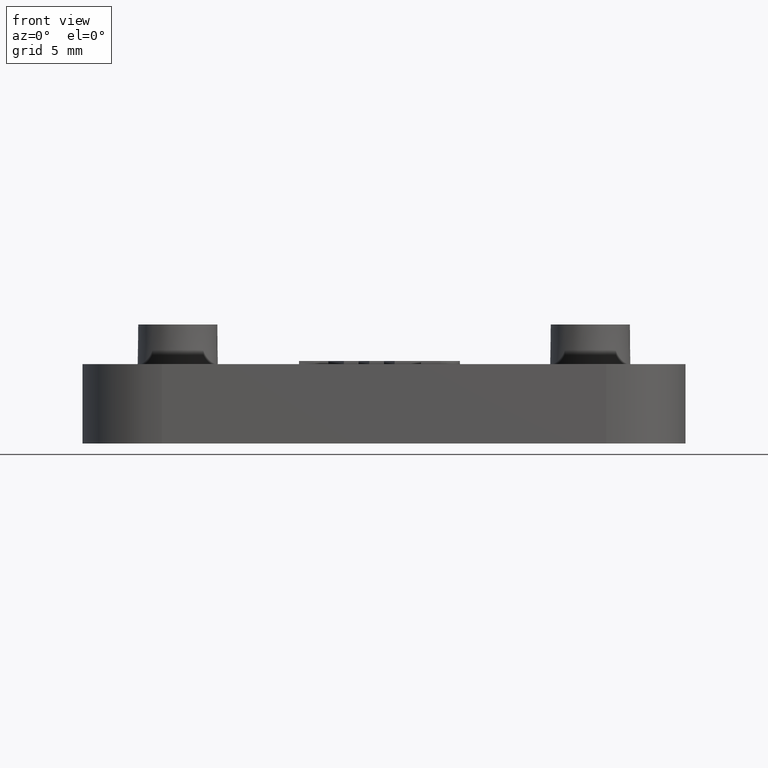
[diagram: clean part render]
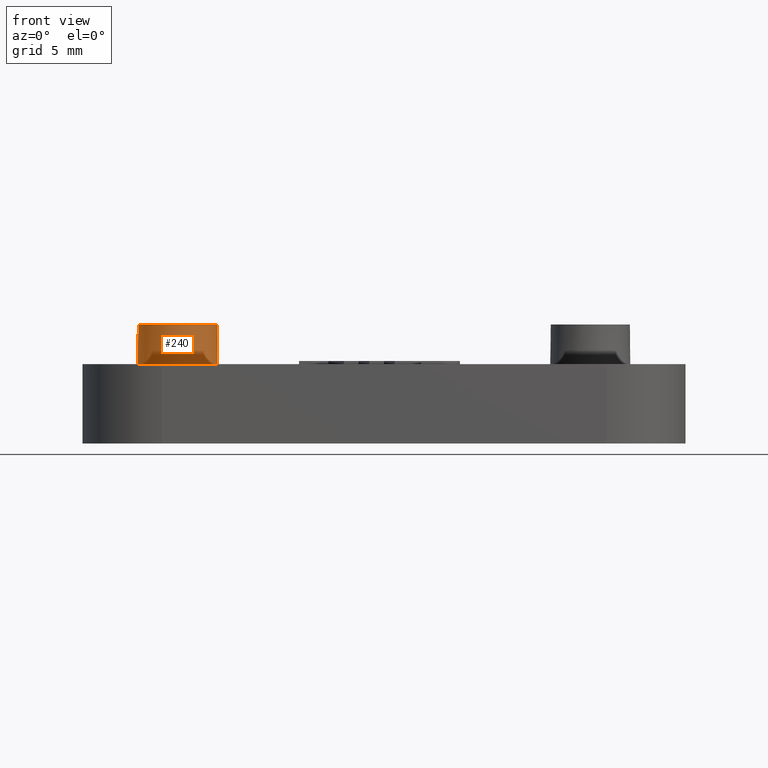
[diagram: same view with one face highlighted and labeled with its STEP entity id]
A machine part, front view. The second image highlights one B-rep face of the part: STEP entity #240.
In plain terms, the highlighted conical surface has half-angle 1 deg.
Its self-contained STEP definition (entity closure, byte-faithful):
#240 = ADVANCED_FACE( '', ( #639, #640 ), #641, .T. );
#639 = FACE_OUTER_BOUND( '', #1127, .T. );
#640 = FACE_BOUND( '', #1128, .T. );
#641 = CONICAL_SURFACE( '', #1129, 2.50000000000000, 0.0174532925199433 );
#1127 = EDGE_LOOP( '', ( #2502 ) );
#1128 = EDGE_LOOP( '', ( #2503 ) );
#1129 = AXIS2_PLACEMENT_3D( '', #2504, #2505, #2506 );
#2502 = ORIENTED_EDGE( '', *, *, #3111, .F. );
#2503 = ORIENTED_EDGE( '', *, *, #3578, .T. );
#2504 = CARTESIAN_POINT( '', ( -13.0000000000000, 0.000165124598850283, 7.49999999999999 ) );
#2505 = DIRECTION( '', ( 0.000000000000000, -6.12303176911189E-017, -1.00000000000000 ) );
#2506 = DIRECTION( '', ( 0.000000000000000, 1.00000000000000, -6.12303176911189E-017 ) );
#3111 = EDGE_CURVE( '', #3698, #3698, #3699, .T. );
#3578 = EDGE_CURVE( '', #4495, #4495, #4496, .T. );
#3698 = VERTEX_POINT( '', #4661 );
#3699 = CIRCLE( '', #4662, 2.54363766232054 );
#4495 = VERTEX_POINT( '', #5921 );
#4496 = CIRCLE( '', #5922, 2.50000000000000 );
#4661 = CARTESIAN_POINT( '', ( -13.0000000000000, 2.54380278691939, 4.99999999999999 ) );
#4662 = AXIS2_PLACEMENT_3D( '', #6135, #6136, #6137 );
#5921 = CARTESIAN_POINT( '', ( -10.5000000000000, 0.000165124598850283, 7.49999999999999 ) );
#5922 = AXIS2_PLACEMENT_3D( '', #6610, #6611, #6612 );
#6135 = CARTESIAN_POINT( '', ( -13.0000000000000, 0.000165124598850130, 4.99999999999999 ) );
#6136 = DIRECTION( '', ( 0.000000000000000, -6.12303176911189E-017, -1.00000000000000 ) );
#6137 = DIRECTION( '', ( 0.000000000000000, 1.00000000000000, -6.12303176911189E-017 ) );
#6610 = CARTESIAN_POINT( '', ( -13.0000000000000, 0.000165124598850283, 7.49999999999999 ) );
#6611 = DIRECTION( '', ( 0.000000000000000, -6.12303176911189E-017, -1.00000000000000 ) );
#6612 = DIRECTION( '', ( 1.00000000000000, 0.000000000000000, 0.000000000000000 ) );